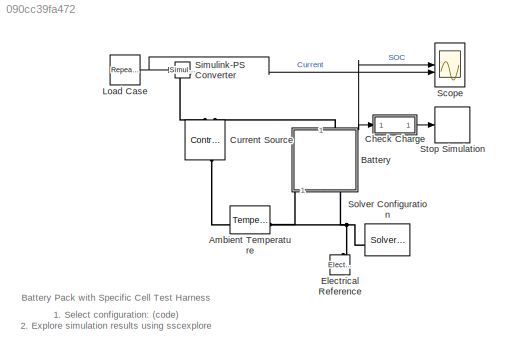
MODEL slx_090cc39fa472
KIND model
CONFIG AbsTol = 1e-3
CONFIG MaxStep = 5
CONFIG SolverName = VariableStepAuto
CONFIG StopTime = 2000
BLOCK [Reference] Ambient Temperature  REF=fl_lib/Thermal/Thermal Sources/Temperature Source
  NameLocation = top
  SourceBlock = fl_lib/Thermal/Thermal Sources/Temperature Source
  SourceType = Temperature Source
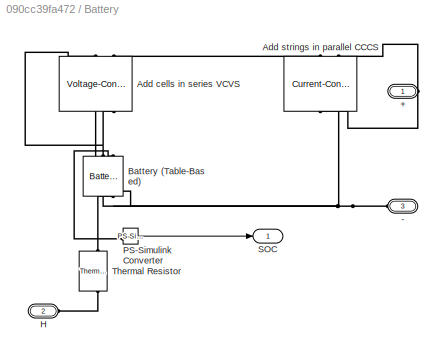
BLOCK [SubSystem] Battery
  NameLocation = right
  VariantControl = Specific
BLOCK [PMIOPort] Battery/+
  Side = Right
BLOCK [PMIOPort] Battery/-
  Port = 3
  Side = Left
BLOCK [Reference] Battery/Add cells in series VCVS  REF=fl_lib/Electrical/Electrical Sources/Voltage-Controlled
Voltage Source
  NameLocation = right
  SourceBlock = fl_lib/Electrical/Electrical Sources/Voltage-Controlled\nVoltage Source
  SourceType = Voltage-Controlled\nVoltage Source
BLOCK [Reference] Battery/Add strings in parallel CCCS  REF=fl_lib/Electrical/Electrical Sources/Current-Controlled
Current Source
  NameLocation = left
  SourceBlock = fl_lib/Electrical/Electrical Sources/Current-Controlled\nCurrent Source
  SourceType = Current-Controlled\nCurrent Source
BLOCK [Reference] Battery/Battery (Table-Based)  REF=batteryecm_lib/Battery
(Table-Based)
  NameLocation = right
  SourceBlock = batteryecm_lib/Battery\n(Table-Based)
  SourceType = Battery\n(Table-Based)
BLOCK [PMIOPort] Battery/H
  NameLocation = top
  Port = 2
  Side = Left
BLOCK [Reference] Battery/PS-Simulink Converter  REF=nesl_utility/PS-Simulink
Converter
  SourceBlock = nesl_utility/PS-Simulink\nConverter
  SourceType = PS-Simulink\nConverter
BLOCK [Outport] Battery/SOC
BLOCK [Reference] Battery/Thermal Resistor  REF=ee_lib/Passive/Thermal/Thermal Resistor
  NameLocation = right
  SourceBlock = ee_lib/Passive/Thermal/Thermal Resistor
  SourceType = Thermal Resistor
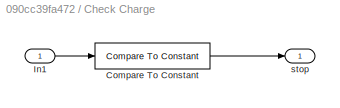
BLOCK [SubSystem] Check Charge
BLOCK [Reference] Check Charge/Compare To Constant  REF=simulink/Logic and Bit
Operations/Compare
To Constant
  SourceBlock = simulink/Logic and Bit\nOperations/Compare\nTo Constant
  SourceType = Compare To Constant
BLOCK [Inport] Check Charge/In1
BLOCK [Outport] Check Charge/stop
  VectorParamsAs1DForOutWhenUnconnected = off
BLOCK [Reference] Current Source  REF=fl_lib/Electrical/Electrical Sources/Controlled Current
Source
  NameLocation = left
  SourceBlock = fl_lib/Electrical/Electrical Sources/Controlled Current\nSource
  SourceType = Controlled Current\nSource
BLOCK [Reference] Electrical Reference  REF=fl_lib/Electrical/Electrical Elements/Electrical Reference
  LibrarySourceBlock = ee_lib/Connectors &\nReferences/Electrical Reference
  NameLocation = left
  SourceBlock = fl_lib/Electrical/Electrical Elements/Electrical Reference
  SourceType = Electrical Reference
BLOCK [Reference] Load Case  REF=simulink/Sources/Repeating
Sequence
  SourceBlock = simulink/Sources/Repeating\nSequence
  SourceType = Repeating table
BLOCK [Scope] Scope
  ActiveDisplayYMaximum = 1.0875
  ActiveDisplayYMinimum = 0.2125
  Floating = off
  GraphicalSettings = {"GraphicalSettings":{"LegacySettings":true,"Style":{"AxesScalingProperties":{"ScaleAxesLimitsAtStop":false},"Style":{"AxesColor":"[0 0 0]","ChannelNames":["",""],"ColorOrder":"[1 0.909803921568627 0.392156862745098;0.149019607843137 0.549019607843137 0.866666666666667;0.96078431372549 0.466666666666667 0.16078431372549;0.286274509803922 0.858823529411765 0.250980392156863;0.752941176470588 0.3607...<+588ch>
  LayoutDimensionsString = [2 1]
  MultipleDisplayCache = [{"MaxYLimMag":1.0875,"MaxYLimReal":1.0875,"MinYLimMag":0.2125,"MinYLimReal":0.2125,"PlotAsMagnitudePhase":false,"ShowGrid":true,"ShowLegend":false,"Title":"%<SignalLabel>","YLabel":""},{"MaxYLimMag":1.0875,"MaxYLimReal":512.76814,"MinYLimMag":0.2125,"MinYLimReal":-56.97424,"PlotAsMagnitudePhase":false,"ShowGrid":true,"ShowLegend":false,"Title":"%<SignalLabel>","YLabel":""}]
  NumInputPorts = 2
  ScopeFrameLocation = window
  WasSavedAsWebScope = on
  WindowPosition = [656.000000,441.000000,313.000000,337.000000,]
BLOCK [Reference] Simulink-PS Converter  REF=nesl_utility/Simulink-PS
Converter
  SourceBlock = nesl_utility/Simulink-PS\nConverter
  SourceType = Simulink-PS\nConverter
BLOCK [Reference] Solver Configuration  REF=nesl_utility/Solver
Configuration
  SourceBlock = nesl_utility/Solver\nConfiguration
  SourceType = Solver\nConfiguration
BLOCK [Stop] Stop Simulation
ANNOTATION (root): 1. Select configuration: ( code ) 2. Explore simulation results using sscexplore
ANNOTATION (root): Battery Pack with Specific Cell Test Harness
LINE Battery/PS-Simulink Converter:1 -> Battery/SOC:1
NET Battery:1 -> Check Charge:1, Scope:1
LINE Check Charge/Compare To Constant:1 -> Check Charge/stop:1
LINE Check Charge/In1:1 -> Check Charge/Compare To Constant:1
LINE Check Charge:1 -> Stop Simulation:1
NET Load Case:1 -> Scope:2, Simulink-PS Converter:1
PLINE Ambient Temperature:LConn1 -- Battery:LConn1
PNET net1: Battery/+:RConn1 -- Battery/Add strings in parallel CCCS:LConn2 -- Battery/Add strings in parallel CCCS:RConn1
PNET net2: Battery/-:RConn1 -- Battery/Add cells in series VCVS:RConn1 -- Battery/Add strings in parallel CCCS:RConn2 -- Battery/Battery (Table-Based):RConn1
PNET net3: Battery/Add cells in series VCVS:LConn1 -- Battery/Add cells in series VCVS:RConn2 -- Battery/Battery (Table-Based):LConn1
PLINE Battery/Add cells in series VCVS:LConn2 -- Battery/Add strings in parallel CCCS:LConn1
PLINE Battery/Battery (Table-Based):LConn2 -- Battery/PS-Simulink Converter:LConn1
PLINE Battery/Battery (Table-Based):RConn2 -- Battery/Thermal Resistor:LConn1
PLINE Battery/H:RConn1 -- Battery/Thermal Resistor:RConn1
PNET net4: Battery:LConn2 -- Current Source:LConn1 -- Electrical Reference:LConn1 -- Solver Configuration:RConn1
PLINE Battery:RConn1 -- Current Source:RConn2
PLINE Current Source:RConn1 -- Simulink-PS Converter:RConn1
note: NET lines group one-source signal fan-out (src -> all destinations, sorted); 1:1 wires keep LINE; PNET lines group multi-terminal physical nets as a canonical sorted terminal list (undirected conserving connections); 2-terminal nets keep the pairwise PLINE form
